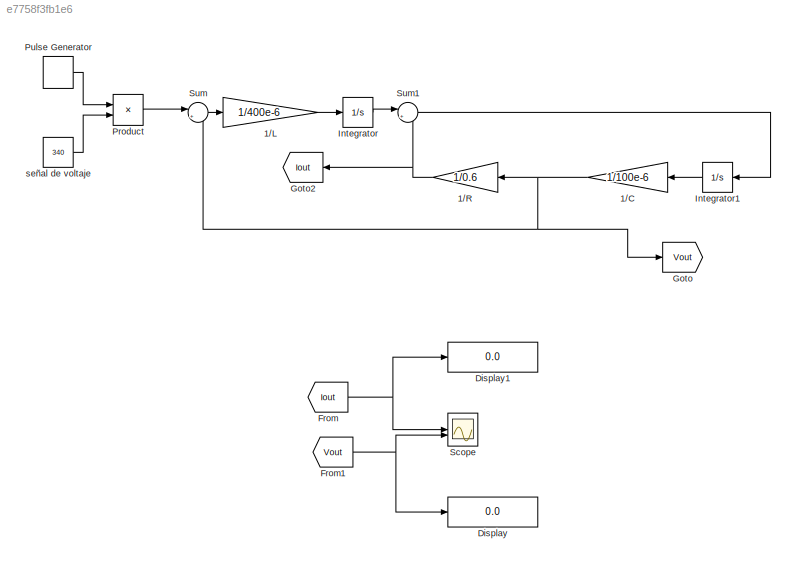
MODEL slx_e7758f3fb1e6
KIND model
CONFIG AbsTol = auto
CONFIG EnableMultiTasking = off
CONFIG FixedStep = auto
CONFIG MaxStep = auto
CONFIG MinStep = auto
CONFIG RelTol = 1e-3
CONFIG SampleTimeConstraint = Unconstrained
CONFIG SolverName = VariableStepAuto
CONFIG StartTime = 0.0
CONFIG StopTime = 10.0
BLOCK [Gain] 1//C
  Gain = 1/100e-6
  NameLocation = top
BLOCK [Gain] 1//L
  Gain = 1/400e-6
BLOCK [Gain] 1//R
  Gain = 1/0.6
  NameLocation = top
BLOCK [Display] Display
  Decimation = 1
BLOCK [Display] Display1
  Decimation = 1
BLOCK [From] From
  GotoTag = Iout
  NameLocation = top
  TagVisibility = global
BLOCK [From] From1
  GotoTag = Vout
BLOCK [Goto] Goto
  GotoTag = Vout
BLOCK [Goto] Goto2
  GotoTag = Iout
  NameLocation = top
  TagVisibility = global
BLOCK [Integrator] Integrator
BLOCK [Integrator] Integrator1
  NameLocation = top
BLOCK [Product] Product
BLOCK [DiscretePulseGenerator] Pulse Generator
  Period = 1/20e3
  PulseType = Time based
  PulseWidth = 0.5*100
BLOCK [Scope] Scope
  ActiveDisplayYMaximum = 400.9173822300337
  ActiveDisplayYMinimum = -191.12110162531121
  ContainerLayout = {"WindowBounds":[128,48,1280,768]}
  Floating = off
  GraphicalSettings = {"Style":{"BackgroundColor":[0.12941176470588237,0.12941176470588237,0.12941176470588237],"AxesColor":[0.07058823529411765,0.07058823529411765,0.07058823529411765],"LabelsColor":[0.8509803921568627,0.8509803921568627,0.8509803921568627],"PreserveColors":false,"Visible":[true,true],"LineStyle":["-","-"],"LineWidth":[1.5,1.5],"BarWidth":[0.9,0.9],"LineColor":["auto","auto"],"LineFaceAlpha":[1,1],"Li...<+2536ch>
  MultipleDisplayCache = [{"MaxYLimMag":318.8352799615858,"MaxYLimReal":400.9173822300337,"MinYLimMag":0,"MinYLimReal":-191.12110162531121,"PlotAsMagnitudePhase":false,"ShowGrid":true,"ShowLegend":false,"Title":"%<SignalLabel>","YLabel":""}]
  NumInputPorts = 2
  ScopeFrameLocation = container
  Visible = on
  WasSavedAsWebScope = on
  WindowPosition = [128.000000,48.000000,1280.000000,768.000000,]
BLOCK [Sum] Sum
  Inputs = |+-
BLOCK [Sum] Sum1
  Inputs = |+-
BLOCK [Constant] señal de voltaje
  Value = 340
NET 1//C:1 -> 1//R:1, Goto:1, Sum:2
LINE 1//L:1 -> Integrator:1
NET 1//R:1 -> Goto2:1, Sum1:2
NET From1:1 -> Display:1, Scope:2
NET From:1 -> Display1:1, Scope:1
LINE Integrator1:1 -> 1//C:1
LINE Integrator:1 -> Sum1:1
LINE Product:1 -> Sum:1
LINE Pulse Generator:1 -> Product:1
LINE Sum1:1 -> Integrator1:1
LINE Sum:1 -> 1//L:1
LINE señal de voltaje:1 -> Product:2
note: NET lines group one-source signal fan-out (src -> all destinations, sorted); 1:1 wires keep LINE
